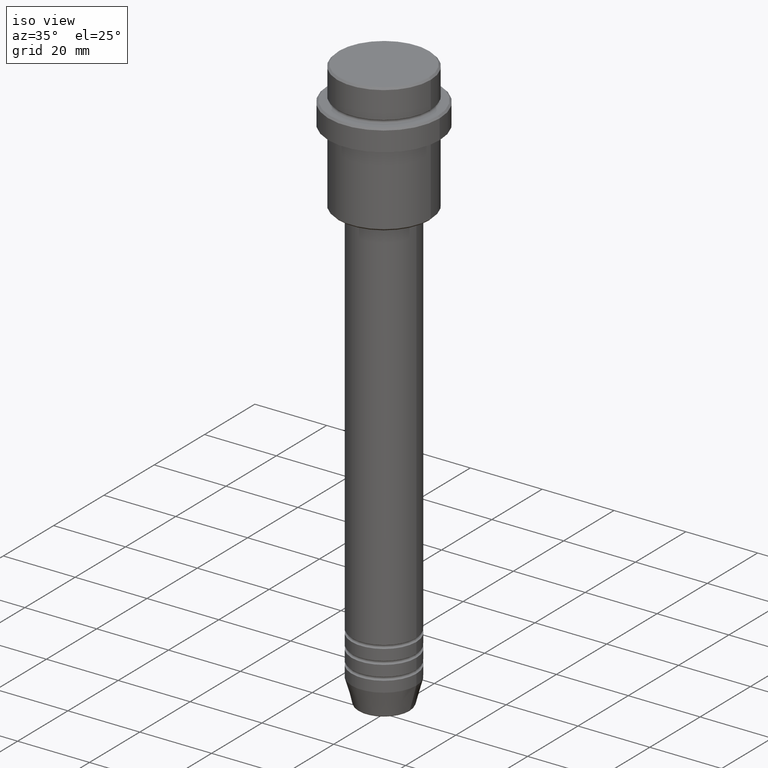
[diagram: clean part render]
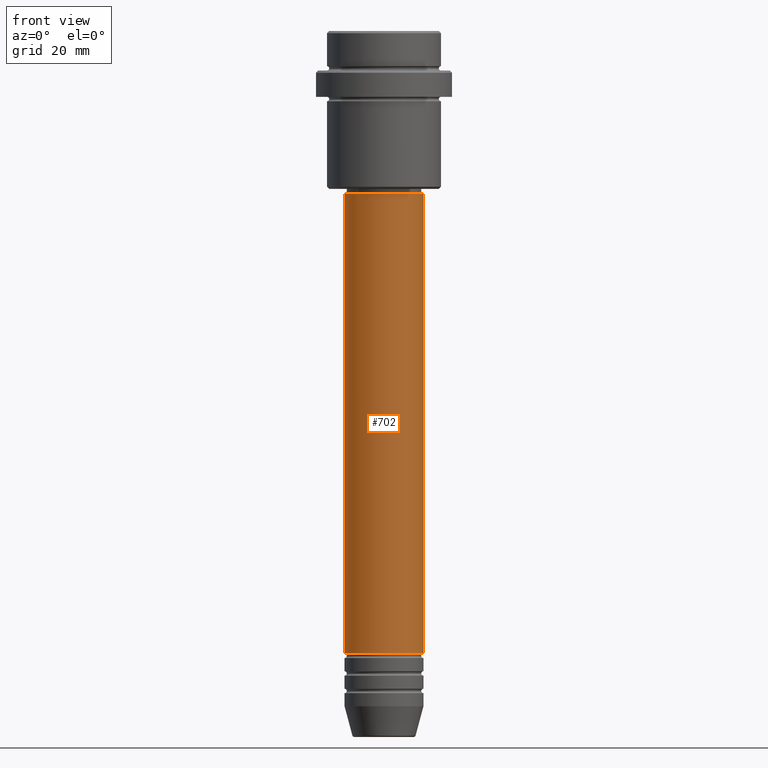
[diagram: tour spotlight — one face highlighted and labeled with its STEP entity id]
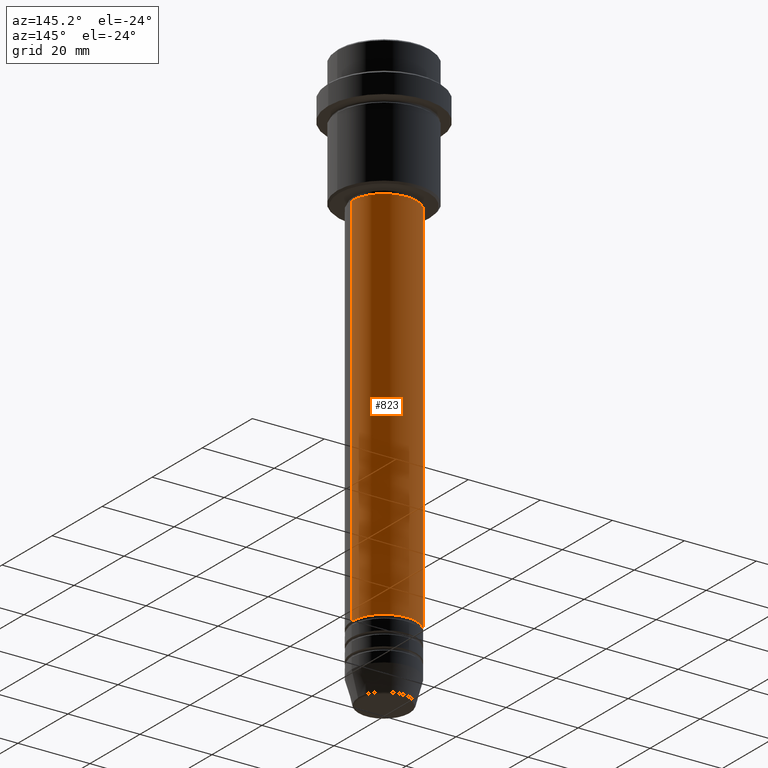
[diagram: tour spotlight — one face highlighted and labeled with its STEP entity id]
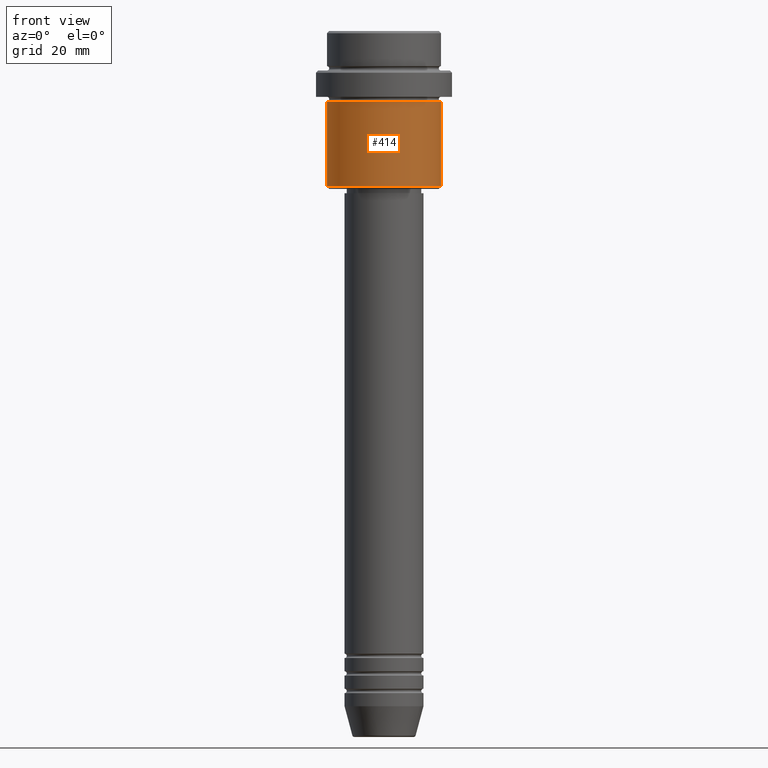
[diagram: tour spotlight — one face highlighted and labeled with its STEP entity id]
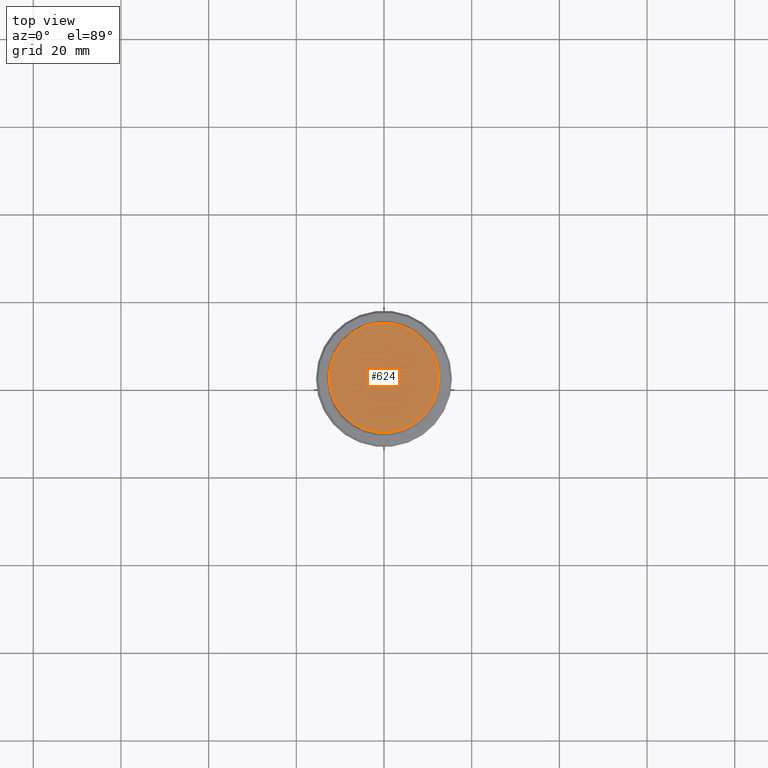
[diagram: tour spotlight — one face highlighted and labeled with its STEP entity id]
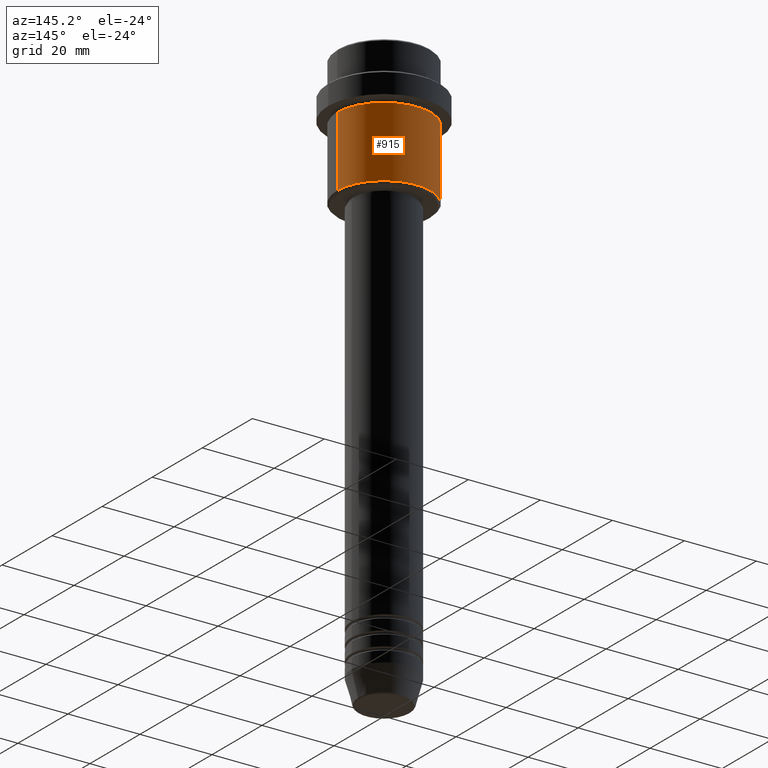
[diagram: tour spotlight — one face highlighted and labeled with its STEP entity id]
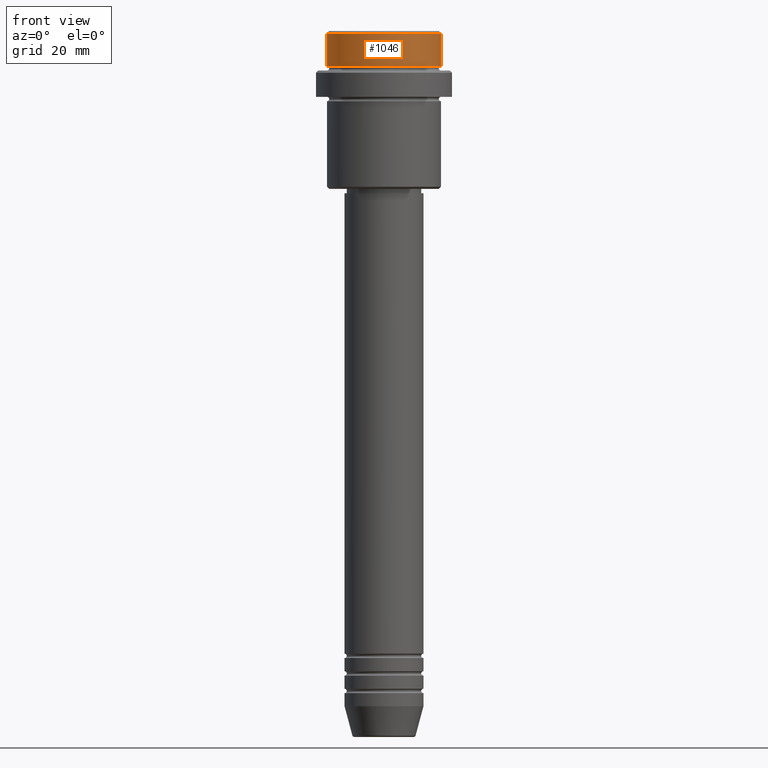
[diagram: tour spotlight — one face highlighted and labeled with its STEP entity id]
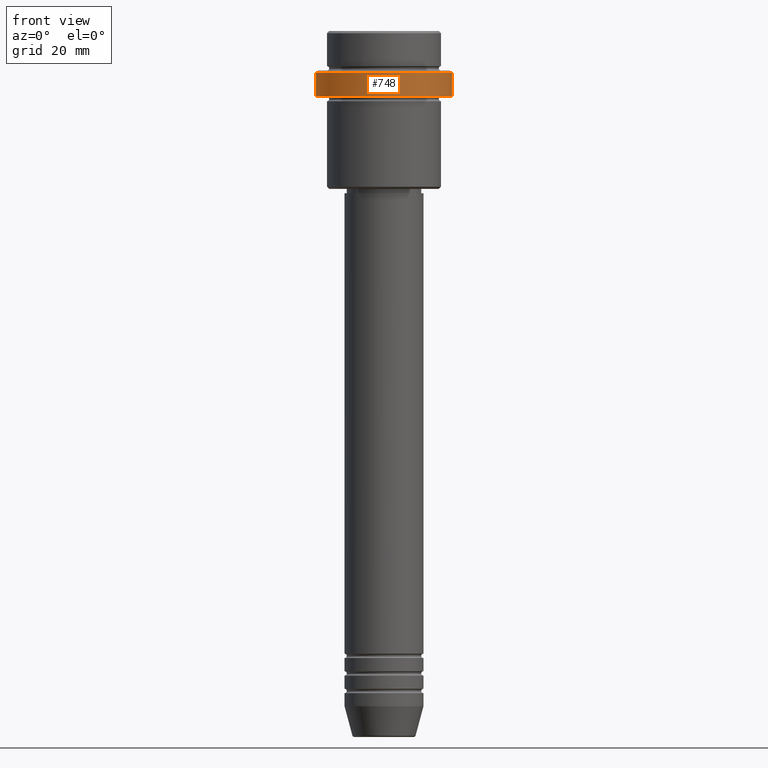
[diagram: tour spotlight — one face highlighted and labeled with its STEP entity id]
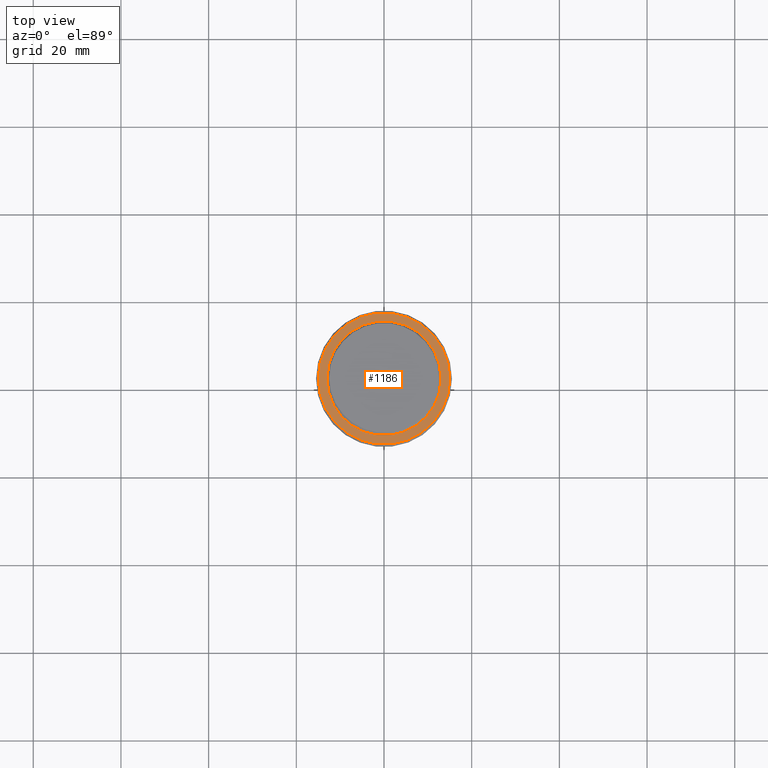
[diagram: tour spotlight — one face highlighted and labeled with its STEP entity id]
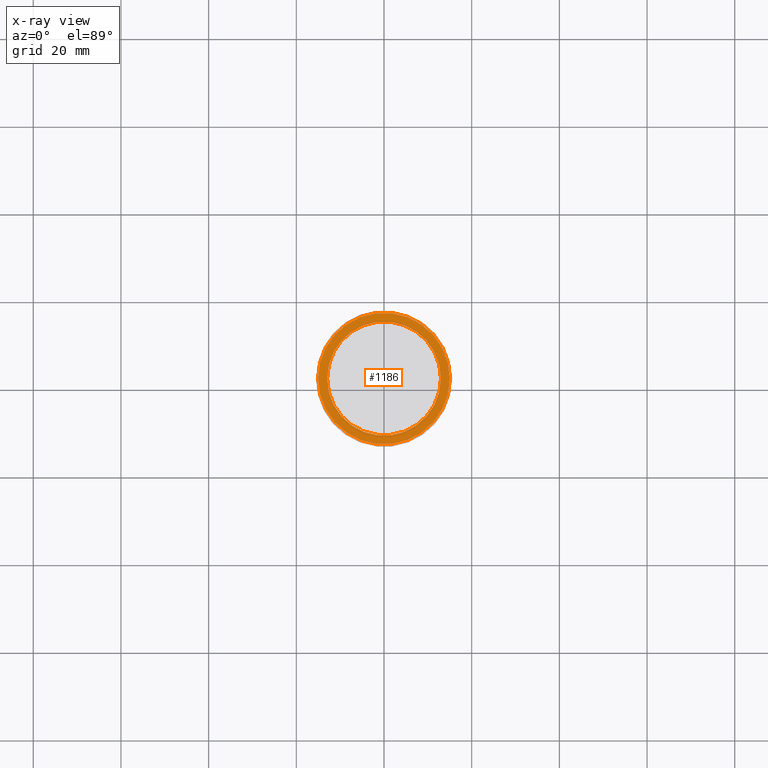
[diagram: x-ray of the same camera — body ghosted, this tour face saturated]
A machine part: a face-by-face anatomy tour. The part has 52 B-rep faces; the first image is the clean iso view, then the 8 largest visible faces are spotlighted one at a time (largest first), each with its STEP entity span.

Face 1 — front view, entity #702. In plain terms, the highlighted cylindrical surface (partial cylindrical patch) has radius 9 mm, axis along (-0, -0, 1).
Definition (entity closure, byte-faithful):
#125 = CARTESIAN_POINT ( 'NONE',  ( 9.000000000000001776, 0.000000000000000000, -36.99999999999999289 ) ) ;
#133 = VERTEX_POINT ( 'NONE', #125 ) ;
#152 = AXIS2_PLACEMENT_3D ( 'NONE', #444, #218, #307 ) ;
#164 = ORIENTED_EDGE ( 'NONE', *, *, #974, .T. ) ;
#173 = AXIS2_PLACEMENT_3D ( 'NONE', #1386, #944, #1365 ) ;
#210 = DIRECTION ( 'NONE',  ( -0.000000000000000000, -0.000000000000000000, 1.000000000000000000 ) ) ;
#218 = DIRECTION ( 'NONE',  ( -0.000000000000000000, -0.000000000000000000, 1.000000000000000000 ) ) ;
#226 = LINE ( 'NONE', #864, #982 ) ;
#275 = CARTESIAN_POINT ( 'NONE',  ( -9.000000000000000000, 1.102182119232617714E-15, -141.9999999999999147 ) ) ;
#307 = DIRECTION ( 'NONE',  ( 1.000000000000000000, 0.000000000000000000, 0.000000000000000000 ) ) ;
#333 = DIRECTION ( 'NONE',  ( 1.000000000000000000, 0.000000000000000000, 0.000000000000000000 ) ) ;
#374 = VERTEX_POINT ( 'NONE', #275 ) ;
#417 = CYLINDRICAL_SURFACE ( 'NONE', #152, 9.000000000000001776 ) ;
#426 = VECTOR ( 'NONE', #616, 1000.000000000000000 ) ;
#444 = CARTESIAN_POINT ( 'NONE',  ( 0.000000000000000000, 0.000000000000000000, 0.000000000000000000 ) ) ;
#521 = CARTESIAN_POINT ( 'NONE',  ( -9.000000000000001776, 1.102182119232617911E-15, -36.99999999999999289 ) ) ;
#544 = DIRECTION ( 'NONE',  ( -0.000000000000000000, -0.000000000000000000, 1.000000000000000000 ) ) ;
#545 = CARTESIAN_POINT ( 'NONE',  ( 9.000000000000000000, 0.000000000000000000, -141.9999999999999147 ) ) ;
#546 = ORIENTED_EDGE ( 'NONE', *, *, #923, .T. ) ;
#592 = CARTESIAN_POINT ( 'NONE',  ( 9.000000000000001776, 0.000000000000000000, 0.000000000000000000 ) ) ;
#616 = DIRECTION ( 'NONE',  ( -0.000000000000000000, -0.000000000000000000, 1.000000000000000000 ) ) ;
#633 = VERTEX_POINT ( 'NONE', #545 ) ;
#702 = ADVANCED_FACE ( 'NONE', ( #1059 ), #417, .T. ) ;
#741 = CIRCLE ( 'NONE', #912, 9.000000000000001776 ) ;
#762 = CIRCLE ( 'NONE', #173, 9.000000000000000000 ) ;
#864 = CARTESIAN_POINT ( 'NONE',  ( -9.000000000000001776, 1.102182119232617911E-15, 0.000000000000000000 ) ) ;
#902 = ORIENTED_EDGE ( 'NONE', *, *, #1100, .F. ) ;
#912 = AXIS2_PLACEMENT_3D ( 'NONE', #1417, #544, #333 ) ;
#921 = VERTEX_POINT ( 'NONE', #521 ) ;
#923 = EDGE_CURVE ( 'NONE', #633, #133, #1270, .T. ) ;
#944 = DIRECTION ( 'NONE',  ( -0.000000000000000000, -0.000000000000000000, 1.000000000000000000 ) ) ;
#974 = EDGE_CURVE ( 'NONE', #374, #633, #762, .T. ) ;
#982 = VECTOR ( 'NONE', #210, 1000.000000000000000 ) ;
#1009 = EDGE_LOOP ( 'NONE', ( #902, #164, #546, #1105 ) ) ;
#1059 = FACE_OUTER_BOUND ( 'NONE', #1009, .T. ) ;
#1100 = EDGE_CURVE ( 'NONE', #374, #921, #226, .T. ) ;
#1105 = ORIENTED_EDGE ( 'NONE', *, *, #1115, .F. ) ;
#1115 = EDGE_CURVE ( 'NONE', #921, #133, #741, .T. ) ;
#1270 = LINE ( 'NONE', #592, #426 ) ;
#1365 = DIRECTION ( 'NONE',  ( 1.000000000000000000, 0.000000000000000000, 0.000000000000000000 ) ) ;
#1386 = CARTESIAN_POINT ( 'NONE',  ( 0.000000000000000000, 0.000000000000000000, -141.9999999999999147 ) ) ;
#1417 = CARTESIAN_POINT ( 'NONE',  ( 0.000000000000000000, 0.000000000000000000, -36.99999999999999289 ) ) ;

Face 2 — auxiliary view, entity #823. In plain terms, the highlighted cylindrical surface (partial cylindrical patch) has radius 9 mm, axis along (-0, -0, 1).
Definition (entity closure, byte-faithful):
#56 = EDGE_LOOP ( 'NONE', ( #297, #821, #168, #1070 ) ) ;
#107 = EDGE_CURVE ( 'NONE', #633, #374, #614, .T. ) ;
#125 = CARTESIAN_POINT ( 'NONE',  ( 9.000000000000001776, 0.000000000000000000, -36.99999999999999289 ) ) ;
#133 = VERTEX_POINT ( 'NONE', #125 ) ;
#168 = ORIENTED_EDGE ( 'NONE', *, *, #274, .F. ) ;
#210 = DIRECTION ( 'NONE',  ( -0.000000000000000000, -0.000000000000000000, 1.000000000000000000 ) ) ;
#226 = LINE ( 'NONE', #864, #982 ) ;
#233 = CARTESIAN_POINT ( 'NONE',  ( 0.000000000000000000, 0.000000000000000000, -36.99999999999999289 ) ) ;
#262 = AXIS2_PLACEMENT_3D ( 'NONE', #233, #1095, #776 ) ;
#274 = EDGE_CURVE ( 'NONE', #133, #921, #466, .T. ) ;
#275 = CARTESIAN_POINT ( 'NONE',  ( -9.000000000000000000, 1.102182119232617714E-15, -141.9999999999999147 ) ) ;
#297 = ORIENTED_EDGE ( 'NONE', *, *, #107, .T. ) ;
#369 = DIRECTION ( 'NONE',  ( -0.000000000000000000, -0.000000000000000000, 1.000000000000000000 ) ) ;
#374 = VERTEX_POINT ( 'NONE', #275 ) ;
#383 = CYLINDRICAL_SURFACE ( 'NONE', #1407, 9.000000000000001776 ) ;
#426 = VECTOR ( 'NONE', #616, 1000.000000000000000 ) ;
#466 = CIRCLE ( 'NONE', #262, 9.000000000000001776 ) ;
#521 = CARTESIAN_POINT ( 'NONE',  ( -9.000000000000001776, 1.102182119232617911E-15, -36.99999999999999289 ) ) ;
#545 = CARTESIAN_POINT ( 'NONE',  ( 9.000000000000000000, 0.000000000000000000, -141.9999999999999147 ) ) ;
#592 = CARTESIAN_POINT ( 'NONE',  ( 9.000000000000001776, 0.000000000000000000, 0.000000000000000000 ) ) ;
#614 = CIRCLE ( 'NONE', #1353, 9.000000000000000000 ) ;
#616 = DIRECTION ( 'NONE',  ( -0.000000000000000000, -0.000000000000000000, 1.000000000000000000 ) ) ;
#627 = DIRECTION ( 'NONE',  ( -0.000000000000000000, -0.000000000000000000, 1.000000000000000000 ) ) ;
#633 = VERTEX_POINT ( 'NONE', #545 ) ;
#776 = DIRECTION ( 'NONE',  ( 1.000000000000000000, 0.000000000000000000, 0.000000000000000000 ) ) ;
#779 = FACE_OUTER_BOUND ( 'NONE', #56, .T. ) ;
#809 = DIRECTION ( 'NONE',  ( 1.000000000000000000, 0.000000000000000000, 0.000000000000000000 ) ) ;
#821 = ORIENTED_EDGE ( 'NONE', *, *, #1100, .T. ) ;
#823 = ADVANCED_FACE ( 'NONE', ( #779 ), #383, .T. ) ;
#864 = CARTESIAN_POINT ( 'NONE',  ( -9.000000000000001776, 1.102182119232617911E-15, 0.000000000000000000 ) ) ;
#921 = VERTEX_POINT ( 'NONE', #521 ) ;
#923 = EDGE_CURVE ( 'NONE', #633, #133, #1270, .T. ) ;
#982 = VECTOR ( 'NONE', #210, 1000.000000000000000 ) ;
#1018 = CARTESIAN_POINT ( 'NONE',  ( 0.000000000000000000, 0.000000000000000000, 0.000000000000000000 ) ) ;
#1056 = CARTESIAN_POINT ( 'NONE',  ( 0.000000000000000000, 0.000000000000000000, -141.9999999999999147 ) ) ;
#1063 = DIRECTION ( 'NONE',  ( 1.000000000000000000, 0.000000000000000000, 0.000000000000000000 ) ) ;
#1070 = ORIENTED_EDGE ( 'NONE', *, *, #923, .F. ) ;
#1095 = DIRECTION ( 'NONE',  ( -0.000000000000000000, -0.000000000000000000, 1.000000000000000000 ) ) ;
#1100 = EDGE_CURVE ( 'NONE', #374, #921, #226, .T. ) ;
#1270 = LINE ( 'NONE', #592, #426 ) ;
#1353 = AXIS2_PLACEMENT_3D ( 'NONE', #1056, #627, #1063 ) ;
#1407 = AXIS2_PLACEMENT_3D ( 'NONE', #1018, #369, #809 ) ;

Face 3 — front view, entity #414. In plain terms, the highlighted cylindrical surface (partial cylindrical patch) has radius 13 mm, axis along (-0, -0, 1).
Definition (entity closure, byte-faithful):
#8 = EDGE_CURVE ( 'NONE', #247, #1220, #376, .T. ) ;
#91 = DIRECTION ( 'NONE',  ( -0.000000000000000000, -0.000000000000000000, 1.000000000000000000 ) ) ;
#183 = ORIENTED_EDGE ( 'NONE', *, *, #254, .T. ) ;
#216 = CARTESIAN_POINT ( 'NONE',  ( 0.000000000000000000, 0.000000000000000000, -35.49999999999997868 ) ) ;
#247 = VERTEX_POINT ( 'NONE', #1201 ) ;
#254 = EDGE_CURVE ( 'NONE', #1220, #1315, #771, .T. ) ;
#325 = LINE ( 'NONE', #1292, #338 ) ;
#338 = VECTOR ( 'NONE', #438, 1000.000000000000000 ) ;
#340 = DIRECTION ( 'NONE',  ( -0.000000000000000000, -0.000000000000000000, 1.000000000000000000 ) ) ;
#376 = CIRCLE ( 'NONE', #1049, 13.00000000000000000 ) ;
#390 = CARTESIAN_POINT ( 'NONE',  ( -13.00000000000000000, 1.592040838891559095E-15, -16.00000000000000000 ) ) ;
#398 = DIRECTION ( 'NONE',  ( 1.000000000000000000, 0.000000000000000000, 0.000000000000000000 ) ) ;
#414 = ADVANCED_FACE ( 'NONE', ( #904 ), #1030, .T. ) ;
#438 = DIRECTION ( 'NONE',  ( -0.000000000000000000, -0.000000000000000000, 1.000000000000000000 ) ) ;
#446 = VECTOR ( 'NONE', #340, 1000.000000000000000 ) ;
#502 = CARTESIAN_POINT ( 'NONE',  ( 13.00000000000000000, 0.000000000000000000, -16.00000000000000000 ) ) ;
#640 = DIRECTION ( 'NONE',  ( -1.000000000000000000, 0.000000000000000000, 0.000000000000000000 ) ) ;
#746 = CARTESIAN_POINT ( 'NONE',  ( 0.000000000000000000, 0.000000000000000000, -16.00000000000000000 ) ) ;
#758 = DIRECTION ( 'NONE',  ( 1.000000000000000000, 0.000000000000000000, 0.000000000000000000 ) ) ;
#771 = LINE ( 'NONE', #867, #446 ) ;
#867 = CARTESIAN_POINT ( 'NONE',  ( 13.00000000000000000, 0.000000000000000000, 0.000000000000000000 ) ) ;
#886 = ORIENTED_EDGE ( 'NONE', *, *, #1136, .F. ) ;
#904 = FACE_OUTER_BOUND ( 'NONE', #1265, .T. ) ;
#905 = CARTESIAN_POINT ( 'NONE',  ( 13.00000000000000000, 0.000000000000000000, -35.49999999999997868 ) ) ;
#980 = VERTEX_POINT ( 'NONE', #390 ) ;
#1030 = CYLINDRICAL_SURFACE ( 'NONE', #1280, 13.00000000000000000 ) ;
#1041 = ORIENTED_EDGE ( 'NONE', *, *, #8, .T. ) ;
#1049 = AXIS2_PLACEMENT_3D ( 'NONE', #216, #1069, #640 ) ;
#1060 = EDGE_CURVE ( 'NONE', #247, #980, #325, .T. ) ;
#1069 = DIRECTION ( 'NONE',  ( -0.000000000000000000, -0.000000000000000000, 1.000000000000000000 ) ) ;
#1107 = CIRCLE ( 'NONE', #1261, 13.00000000000000000 ) ;
#1136 = EDGE_CURVE ( 'NONE', #980, #1315, #1107, .T. ) ;
#1201 = CARTESIAN_POINT ( 'NONE',  ( -13.00000000000000000, 1.592040838891559095E-15, -35.49999999999997868 ) ) ;
#1220 = VERTEX_POINT ( 'NONE', #905 ) ;
#1229 = DIRECTION ( 'NONE',  ( -0.000000000000000000, -0.000000000000000000, 1.000000000000000000 ) ) ;
#1261 = AXIS2_PLACEMENT_3D ( 'NONE', #746, #91, #758 ) ;
#1265 = EDGE_LOOP ( 'NONE', ( #1275, #1041, #183, #886 ) ) ;
#1275 = ORIENTED_EDGE ( 'NONE', *, *, #1060, .F. ) ;
#1280 = AXIS2_PLACEMENT_3D ( 'NONE', #1373, #1229, #398 ) ;
#1292 = CARTESIAN_POINT ( 'NONE',  ( -13.00000000000000000, 1.592040838891559095E-15, 0.000000000000000000 ) ) ;
#1315 = VERTEX_POINT ( 'NONE', #502 ) ;
#1373 = CARTESIAN_POINT ( 'NONE',  ( 0.000000000000000000, 0.000000000000000000, 0.000000000000000000 ) ) ;

Face 4 — top view, entity #624. In plain terms, the highlighted planar face has unit normal (0, -0, 1).
Definition (entity closure, byte-faithful):
#3 = DIRECTION ( 'NONE',  ( 1.000000000000000000, 0.000000000000000000, 0.000000000000000000 ) ) ;
#64 = VERTEX_POINT ( 'NONE', #652 ) ;
#89 = CARTESIAN_POINT ( 'NONE',  ( 0.000000000000000000, 0.000000000000000000, 0.000000000000000000 ) ) ;
#101 = AXIS2_PLACEMENT_3D ( 'NONE', #322, #833, #1267 ) ;
#110 = FACE_OUTER_BOUND ( 'NONE', #1341, .T. ) ;
#172 = AXIS2_PLACEMENT_3D ( 'NONE', #89, #408, #506 ) ;
#288 = AXIS2_PLACEMENT_3D ( 'NONE', #543, #650, #3 ) ;
#322 = CARTESIAN_POINT ( 'NONE',  ( 0.000000000000000000, 0.000000000000000000, 0.000000000000000000 ) ) ;
#355 = CIRCLE ( 'NONE', #172, 12.49999999999999822 ) ;
#408 = DIRECTION ( 'NONE',  ( -0.000000000000000000, -0.000000000000000000, 1.000000000000000000 ) ) ;
#453 = VERTEX_POINT ( 'NONE', #1076 ) ;
#506 = DIRECTION ( 'NONE',  ( 1.000000000000000000, 0.000000000000000000, 0.000000000000000000 ) ) ;
#542 = EDGE_CURVE ( 'NONE', #453, #64, #355, .T. ) ;
#543 = CARTESIAN_POINT ( 'NONE',  ( 0.000000000000000000, 0.000000000000000000, 0.000000000000000000 ) ) ;
#569 = ORIENTED_EDGE ( 'NONE', *, *, #604, .T. ) ;
#604 = EDGE_CURVE ( 'NONE', #64, #453, #1332, .T. ) ;
#624 = ADVANCED_FACE ( 'NONE', ( #110 ), #969, .T. ) ;
#650 = DIRECTION ( 'NONE',  ( 0.000000000000000000, -0.000000000000000000, 1.000000000000000000 ) ) ;
#652 = CARTESIAN_POINT ( 'NONE',  ( 12.49999999999999822, 1.561424668912875111E-15, 0.000000000000000000 ) ) ;
#794 = ORIENTED_EDGE ( 'NONE', *, *, #542, .T. ) ;
#833 = DIRECTION ( 'NONE',  ( -0.000000000000000000, -0.000000000000000000, 1.000000000000000000 ) ) ;
#969 = PLANE ( 'NONE',  #288 ) ;
#1076 = CARTESIAN_POINT ( 'NONE',  ( -12.49999999999999822, 0.000000000000000000, 0.000000000000000000 ) ) ;
#1267 = DIRECTION ( 'NONE',  ( 1.000000000000000000, 0.000000000000000000, 0.000000000000000000 ) ) ;
#1332 = CIRCLE ( 'NONE', #101, 12.49999999999999822 ) ;
#1341 = EDGE_LOOP ( 'NONE', ( #794, #569 ) ) ;

Face 5 — auxiliary view, entity #915. In plain terms, the highlighted cylindrical surface (partial cylindrical patch) has radius 13 mm, axis along (-0, -0, 1).
Definition (entity closure, byte-faithful):
#48 = DIRECTION ( 'NONE',  ( -0.000000000000000000, -0.000000000000000000, 1.000000000000000000 ) ) ;
#57 = DIRECTION ( 'NONE',  ( 1.000000000000000000, 0.000000000000000000, 0.000000000000000000 ) ) ;
#65 = DIRECTION ( 'NONE',  ( -0.000000000000000000, -0.000000000000000000, 1.000000000000000000 ) ) ;
#184 = FACE_OUTER_BOUND ( 'NONE', #844, .T. ) ;
#247 = VERTEX_POINT ( 'NONE', #1201 ) ;
#254 = EDGE_CURVE ( 'NONE', #1220, #1315, #771, .T. ) ;
#271 = ORIENTED_EDGE ( 'NONE', *, *, #254, .F. ) ;
#325 = LINE ( 'NONE', #1292, #338 ) ;
#338 = VECTOR ( 'NONE', #438, 1000.000000000000000 ) ;
#340 = DIRECTION ( 'NONE',  ( -0.000000000000000000, -0.000000000000000000, 1.000000000000000000 ) ) ;
#354 = AXIS2_PLACEMENT_3D ( 'NONE', #1012, #925, #1244 ) ;
#390 = CARTESIAN_POINT ( 'NONE',  ( -13.00000000000000000, 1.592040838891559095E-15, -16.00000000000000000 ) ) ;
#391 = EDGE_CURVE ( 'NONE', #1315, #980, #1329, .T. ) ;
#438 = DIRECTION ( 'NONE',  ( -0.000000000000000000, -0.000000000000000000, 1.000000000000000000 ) ) ;
#446 = VECTOR ( 'NONE', #340, 1000.000000000000000 ) ;
#472 = AXIS2_PLACEMENT_3D ( 'NONE', #880, #48, #564 ) ;
#502 = CARTESIAN_POINT ( 'NONE',  ( 13.00000000000000000, 0.000000000000000000, -16.00000000000000000 ) ) ;
#564 = DIRECTION ( 'NONE',  ( -1.000000000000000000, 0.000000000000000000, 0.000000000000000000 ) ) ;
#727 = CARTESIAN_POINT ( 'NONE',  ( 0.000000000000000000, 0.000000000000000000, 0.000000000000000000 ) ) ;
#771 = LINE ( 'NONE', #867, #446 ) ;
#778 = ORIENTED_EDGE ( 'NONE', *, *, #1060, .T. ) ;
#805 = CIRCLE ( 'NONE', #472, 13.00000000000000000 ) ;
#844 = EDGE_LOOP ( 'NONE', ( #1102, #778, #935, #271 ) ) ;
#852 = AXIS2_PLACEMENT_3D ( 'NONE', #727, #65, #57 ) ;
#867 = CARTESIAN_POINT ( 'NONE',  ( 13.00000000000000000, 0.000000000000000000, 0.000000000000000000 ) ) ;
#880 = CARTESIAN_POINT ( 'NONE',  ( 0.000000000000000000, 0.000000000000000000, -35.49999999999997868 ) ) ;
#905 = CARTESIAN_POINT ( 'NONE',  ( 13.00000000000000000, 0.000000000000000000, -35.49999999999997868 ) ) ;
#915 = ADVANCED_FACE ( 'NONE', ( #184 ), #1173, .T. ) ;
#925 = DIRECTION ( 'NONE',  ( -0.000000000000000000, -0.000000000000000000, 1.000000000000000000 ) ) ;
#935 = ORIENTED_EDGE ( 'NONE', *, *, #391, .F. ) ;
#980 = VERTEX_POINT ( 'NONE', #390 ) ;
#1012 = CARTESIAN_POINT ( 'NONE',  ( 0.000000000000000000, 0.000000000000000000, -16.00000000000000000 ) ) ;
#1060 = EDGE_CURVE ( 'NONE', #247, #980, #325, .T. ) ;
#1102 = ORIENTED_EDGE ( 'NONE', *, *, #1203, .T. ) ;
#1173 = CYLINDRICAL_SURFACE ( 'NONE', #852, 13.00000000000000000 ) ;
#1201 = CARTESIAN_POINT ( 'NONE',  ( -13.00000000000000000, 1.592040838891559095E-15, -35.49999999999997868 ) ) ;
#1203 = EDGE_CURVE ( 'NONE', #1220, #247, #805, .T. ) ;
#1220 = VERTEX_POINT ( 'NONE', #905 ) ;
#1244 = DIRECTION ( 'NONE',  ( 1.000000000000000000, 0.000000000000000000, 0.000000000000000000 ) ) ;
#1292 = CARTESIAN_POINT ( 'NONE',  ( -13.00000000000000000, 1.592040838891559095E-15, 0.000000000000000000 ) ) ;
#1315 = VERTEX_POINT ( 'NONE', #502 ) ;
#1329 = CIRCLE ( 'NONE', #354, 13.00000000000000000 ) ;

Face 6 — front view, entity #1046. In plain terms, the highlighted cylindrical surface (partial cylindrical patch) has radius 13 mm, axis along (-0, -0, 1).
Definition (entity closure, byte-faithful):
#106 = CIRCLE ( 'NONE', #938, 12.99999999999999822 ) ;
#118 = CARTESIAN_POINT ( 'NONE',  ( 0.000000000000000000, 0.000000000000000000, 0.000000000000000000 ) ) ;
#120 = ORIENTED_EDGE ( 'NONE', *, *, #1277, .T. ) ;
#162 = LINE ( 'NONE', #602, #335 ) ;
#221 = DIRECTION ( 'NONE',  ( -0.000000000000000000, -0.000000000000000000, 1.000000000000000000 ) ) ;
#289 = ORIENTED_EDGE ( 'NONE', *, *, #505, .F. ) ;
#294 = EDGE_CURVE ( 'NONE', #907, #1138, #162, .T. ) ;
#335 = VECTOR ( 'NONE', #607, 1000.000000000000000 ) ;
#345 = FACE_OUTER_BOUND ( 'NONE', #382, .T. ) ;
#382 = EDGE_LOOP ( 'NONE', ( #289, #471, #757, #120 ) ) ;
#471 = ORIENTED_EDGE ( 'NONE', *, *, #630, .T. ) ;
#482 = DIRECTION ( 'NONE',  ( 0.000000000000000000, 0.000000000000000000, -1.000000000000000000 ) ) ;
#490 = CIRCLE ( 'NONE', #692, 12.99999999999999822 ) ;
#505 = EDGE_CURVE ( 'NONE', #1346, #1111, #1167, .T. ) ;
#532 = DIRECTION ( 'NONE',  ( 1.000000000000000000, 0.000000000000000000, 0.000000000000000000 ) ) ;
#570 = DIRECTION ( 'NONE',  ( 1.000000000000000000, 0.000000000000000000, 0.000000000000000000 ) ) ;
#581 = CARTESIAN_POINT ( 'NONE',  ( 12.99999999999999822, 0.000000000000000000, -7.999999999999998224 ) ) ;
#602 = CARTESIAN_POINT ( 'NONE',  ( 12.99999999999999822, 0.000000000000000000, 0.000000000000000000 ) ) ;
#607 = DIRECTION ( 'NONE',  ( -0.000000000000000000, -0.000000000000000000, 1.000000000000000000 ) ) ;
#628 = CYLINDRICAL_SURFACE ( 'NONE', #1055, 12.99999999999999822 ) ;
#630 = EDGE_CURVE ( 'NONE', #1346, #907, #490, .T. ) ;
#659 = CARTESIAN_POINT ( 'NONE',  ( -12.99999999999999822, 1.592040838891558898E-15, -0.5000000000000038858 ) ) ;
#692 = AXIS2_PLACEMENT_3D ( 'NONE', #1087, #1310, #845 ) ;
#715 = CARTESIAN_POINT ( 'NONE',  ( -12.99999999999999822, 1.592040838891558898E-15, -7.999999999999998224 ) ) ;
#744 = CARTESIAN_POINT ( 'NONE',  ( -12.99999999999999822, 1.592040838891558898E-15, 0.000000000000000000 ) ) ;
#757 = ORIENTED_EDGE ( 'NONE', *, *, #294, .T. ) ;
#845 = DIRECTION ( 'NONE',  ( 1.000000000000000000, 0.000000000000000000, 0.000000000000000000 ) ) ;
#907 = VERTEX_POINT ( 'NONE', #581 ) ;
#911 = VECTOR ( 'NONE', #221, 1000.000000000000000 ) ;
#938 = AXIS2_PLACEMENT_3D ( 'NONE', #1206, #482, #570 ) ;
#1046 = ADVANCED_FACE ( 'NONE', ( #345 ), #628, .T. ) ;
#1055 = AXIS2_PLACEMENT_3D ( 'NONE', #118, #1299, #532 ) ;
#1087 = CARTESIAN_POINT ( 'NONE',  ( 0.000000000000000000, 0.000000000000000000, -7.999999999999998224 ) ) ;
#1090 = CARTESIAN_POINT ( 'NONE',  ( 12.99999999999999822, 0.000000000000000000, -0.5000000000000038858 ) ) ;
#1111 = VERTEX_POINT ( 'NONE', #659 ) ;
#1138 = VERTEX_POINT ( 'NONE', #1090 ) ;
#1167 = LINE ( 'NONE', #744, #911 ) ;
#1206 = CARTESIAN_POINT ( 'NONE',  ( 0.000000000000000000, 0.000000000000000000, -0.5000000000000038858 ) ) ;
#1277 = EDGE_CURVE ( 'NONE', #1138, #1111, #106, .T. ) ;
#1299 = DIRECTION ( 'NONE',  ( -0.000000000000000000, -0.000000000000000000, 1.000000000000000000 ) ) ;
#1310 = DIRECTION ( 'NONE',  ( -0.000000000000000000, -0.000000000000000000, 1.000000000000000000 ) ) ;
#1346 = VERTEX_POINT ( 'NONE', #715 ) ;

Face 7 — front view, entity #748. In plain terms, the highlighted cylindrical surface (partial cylindrical patch) has radius 15.5 mm, axis along (-0, -0, 1).
Definition (entity closure, byte-faithful):
#22 = ORIENTED_EDGE ( 'NONE', *, *, #1040, .F. ) ;
#29 = CIRCLE ( 'NONE', #822, 15.50000000000000000 ) ;
#45 = EDGE_CURVE ( 'NONE', #148, #1175, #29, .T. ) ;
#70 = DIRECTION ( 'NONE',  ( 0.000000000000000000, 0.000000000000000000, -1.000000000000000000 ) ) ;
#76 = VERTEX_POINT ( 'NONE', #300 ) ;
#84 = DIRECTION ( 'NONE',  ( -0.000000000000000000, -0.000000000000000000, 1.000000000000000000 ) ) ;
#135 = CARTESIAN_POINT ( 'NONE',  ( -15.50000000000000000, 1.898202538678397557E-15, -15.00000000000000000 ) ) ;
#148 = VERTEX_POINT ( 'NONE', #135 ) ;
#180 = DIRECTION ( 'NONE',  ( 1.000000000000000000, 0.000000000000000000, 0.000000000000000000 ) ) ;
#300 = CARTESIAN_POINT ( 'NONE',  ( 15.50000000000000000, 0.000000000000000000, -9.499999999999969802 ) ) ;
#341 = CARTESIAN_POINT ( 'NONE',  ( 15.50000000000000000, 0.000000000000000000, -15.00000000000000000 ) ) ;
#357 = ORIENTED_EDGE ( 'NONE', *, *, #1380, .T. ) ;
#494 = VECTOR ( 'NONE', #84, 1000.000000000000000 ) ;
#515 = CIRCLE ( 'NONE', #1005, 15.50000000000000000 ) ;
#522 = CYLINDRICAL_SURFACE ( 'NONE', #1146, 15.50000000000000000 ) ;
#541 = CARTESIAN_POINT ( 'NONE',  ( 0.000000000000000000, 0.000000000000000000, 0.000000000000000000 ) ) ;
#550 = CARTESIAN_POINT ( 'NONE',  ( -15.50000000000000000, 1.898202538678397557E-15, 0.000000000000000000 ) ) ;
#613 = CARTESIAN_POINT ( 'NONE',  ( 15.50000000000000000, 0.000000000000000000, 0.000000000000000000 ) ) ;
#646 = EDGE_LOOP ( 'NONE', ( #22, #1043, #357, #878 ) ) ;
#730 = DIRECTION ( 'NONE',  ( -0.000000000000000000, -0.000000000000000000, 1.000000000000000000 ) ) ;
#748 = ADVANCED_FACE ( 'NONE', ( #851 ), #522, .T. ) ;
#767 = DIRECTION ( 'NONE',  ( -0.000000000000000000, -0.000000000000000000, 1.000000000000000000 ) ) ;
#814 = CARTESIAN_POINT ( 'NONE',  ( 0.000000000000000000, 0.000000000000000000, -9.499999999999969802 ) ) ;
#822 = AXIS2_PLACEMENT_3D ( 'NONE', #1269, #730, #1291 ) ;
#851 = FACE_OUTER_BOUND ( 'NONE', #646, .T. ) ;
#865 = DIRECTION ( 'NONE',  ( -0.000000000000000000, -0.000000000000000000, 1.000000000000000000 ) ) ;
#878 = ORIENTED_EDGE ( 'NONE', *, *, #994, .T. ) ;
#928 = LINE ( 'NONE', #550, #1381 ) ;
#933 = LINE ( 'NONE', #613, #494 ) ;
#994 = EDGE_CURVE ( 'NONE', #76, #1233, #515, .T. ) ;
#1005 = AXIS2_PLACEMENT_3D ( 'NONE', #814, #70, #180 ) ;
#1040 = EDGE_CURVE ( 'NONE', #148, #1233, #928, .T. ) ;
#1043 = ORIENTED_EDGE ( 'NONE', *, *, #45, .T. ) ;
#1146 = AXIS2_PLACEMENT_3D ( 'NONE', #541, #865, #1196 ) ;
#1175 = VERTEX_POINT ( 'NONE', #341 ) ;
#1196 = DIRECTION ( 'NONE',  ( 1.000000000000000000, 0.000000000000000000, 0.000000000000000000 ) ) ;
#1233 = VERTEX_POINT ( 'NONE', #1321 ) ;
#1269 = CARTESIAN_POINT ( 'NONE',  ( 0.000000000000000000, 0.000000000000000000, -15.00000000000000000 ) ) ;
#1291 = DIRECTION ( 'NONE',  ( 1.000000000000000000, 0.000000000000000000, 0.000000000000000000 ) ) ;
#1321 = CARTESIAN_POINT ( 'NONE',  ( -15.50000000000000000, 1.898202538678397557E-15, -9.499999999999969802 ) ) ;
#1380 = EDGE_CURVE ( 'NONE', #1175, #76, #933, .T. ) ;
#1381 = VECTOR ( 'NONE', #767, 1000.000000000000000 ) ;

Face 8 — top view, entity #1186. An x-ray twin of the same camera follows (body ghosted, this face saturated) — the face is partly hidden behind the body. In plain terms, the highlighted planar face has unit normal (0, -0, 1).
Definition (entity closure, byte-faithful):
#16 = DIRECTION ( 'NONE',  ( 1.000000000000000000, 0.000000000000000000, 0.000000000000000000 ) ) ;
#62 = DIRECTION ( 'NONE',  ( 0.000000000000000000, 0.000000000000000000, -1.000000000000000000 ) ) ;
#126 = PLANE ( 'NONE',  #983 ) ;
#146 = CARTESIAN_POINT ( 'NONE',  ( 0.000000000000000000, 12.49999999999999289, -9.000000000000000000 ) ) ;
#195 = EDGE_CURVE ( 'NONE', #960, #991, #1125, .T. ) ;
#310 = EDGE_CURVE ( 'NONE', #1342, #483, #553, .T. ) ;
#337 = CIRCLE ( 'NONE', #1306, 15.00000000000001421 ) ;
#350 = FACE_OUTER_BOUND ( 'NONE', #585, .T. ) ;
#389 = ORIENTED_EDGE ( 'NONE', *, *, #639, .T. ) ;
#423 = EDGE_CURVE ( 'NONE', #991, #960, #669, .T. ) ;
#483 = VERTEX_POINT ( 'NONE', #1161 ) ;
#533 = CARTESIAN_POINT ( 'NONE',  ( 0.000000000000000000, 0.000000000000000000, -9.000000000000000000 ) ) ;
#553 = CIRCLE ( 'NONE', #1235, 15.00000000000001421 ) ;
#557 = CARTESIAN_POINT ( 'NONE',  ( 0.000000000000000000, 0.000000000000000000, -9.000000000000000000 ) ) ;
#585 = EDGE_LOOP ( 'NONE', ( #389, #1243 ) ) ;
#619 = EDGE_LOOP ( 'NONE', ( #1262, #967 ) ) ;
#639 = EDGE_CURVE ( 'NONE', #483, #1342, #337, .T. ) ;
#669 = CIRCLE ( 'NONE', #781, 12.99999999999999467 ) ;
#777 = DIRECTION ( 'NONE',  ( 1.000000000000000000, 0.000000000000000000, 0.000000000000000000 ) ) ;
#781 = AXIS2_PLACEMENT_3D ( 'NONE', #825, #62, #1351 ) ;
#792 = DIRECTION ( 'NONE',  ( 0.000000000000000000, -0.000000000000000000, 1.000000000000000000 ) ) ;
#803 = CARTESIAN_POINT ( 'NONE',  ( 0.000000000000000000, 0.000000000000000000, -9.000000000000000000 ) ) ;
#819 = CARTESIAN_POINT ( 'NONE',  ( 12.99999999999999467, 0.000000000000000000, -9.000000000000000000 ) ) ;
#825 = CARTESIAN_POINT ( 'NONE',  ( 0.000000000000000000, 0.000000000000000000, -9.000000000000000000 ) ) ;
#883 = DIRECTION ( 'NONE',  ( 0.000000000000000000, 0.000000000000000000, -1.000000000000000000 ) ) ;
#917 = CARTESIAN_POINT ( 'NONE',  ( -12.99999999999999467, 1.592040838891558504E-15, -9.000000000000000000 ) ) ;
#926 = CARTESIAN_POINT ( 'NONE',  ( 15.00000000000001421, 1.867586368699714559E-15, -9.000000000000000000 ) ) ;
#960 = VERTEX_POINT ( 'NONE', #917 ) ;
#966 = DIRECTION ( 'NONE',  ( 1.000000000000000000, 0.000000000000000000, 0.000000000000000000 ) ) ;
#967 = ORIENTED_EDGE ( 'NONE', *, *, #195, .T. ) ;
#973 = DIRECTION ( 'NONE',  ( -0.000000000000000000, -0.000000000000000000, 1.000000000000000000 ) ) ;
#983 = AXIS2_PLACEMENT_3D ( 'NONE', #146, #792, #777 ) ;
#991 = VERTEX_POINT ( 'NONE', #819 ) ;
#1020 = DIRECTION ( 'NONE',  ( -0.000000000000000000, -0.000000000000000000, 1.000000000000000000 ) ) ;
#1125 = CIRCLE ( 'NONE', #1305, 12.99999999999999467 ) ;
#1137 = DIRECTION ( 'NONE',  ( 1.000000000000000000, 0.000000000000000000, 0.000000000000000000 ) ) ;
#1161 = CARTESIAN_POINT ( 'NONE',  ( -15.00000000000001421, 0.000000000000000000, -9.000000000000000000 ) ) ;
#1186 = ADVANCED_FACE ( 'NONE', ( #350, #1219 ), #126, .T. ) ;
#1219 = FACE_BOUND ( 'NONE', #619, .T. ) ;
#1235 = AXIS2_PLACEMENT_3D ( 'NONE', #803, #1020, #1137 ) ;
#1243 = ORIENTED_EDGE ( 'NONE', *, *, #310, .T. ) ;
#1262 = ORIENTED_EDGE ( 'NONE', *, *, #423, .T. ) ;
#1305 = AXIS2_PLACEMENT_3D ( 'NONE', #557, #883, #16 ) ;
#1306 = AXIS2_PLACEMENT_3D ( 'NONE', #533, #973, #966 ) ;
#1342 = VERTEX_POINT ( 'NONE', #926 ) ;
#1351 = DIRECTION ( 'NONE',  ( 1.000000000000000000, 0.000000000000000000, 0.000000000000000000 ) ) ;